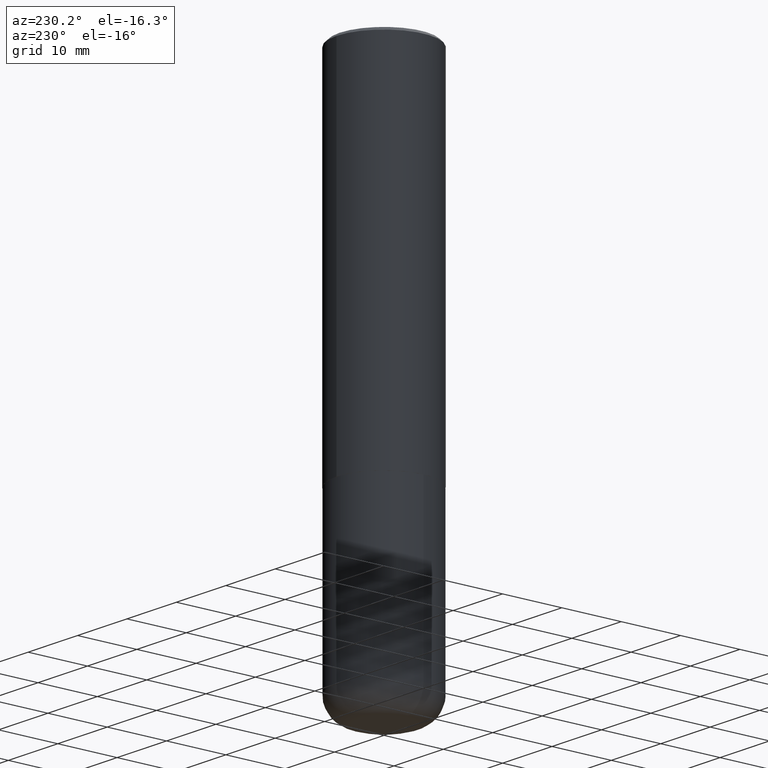
[diagram: clean part render]
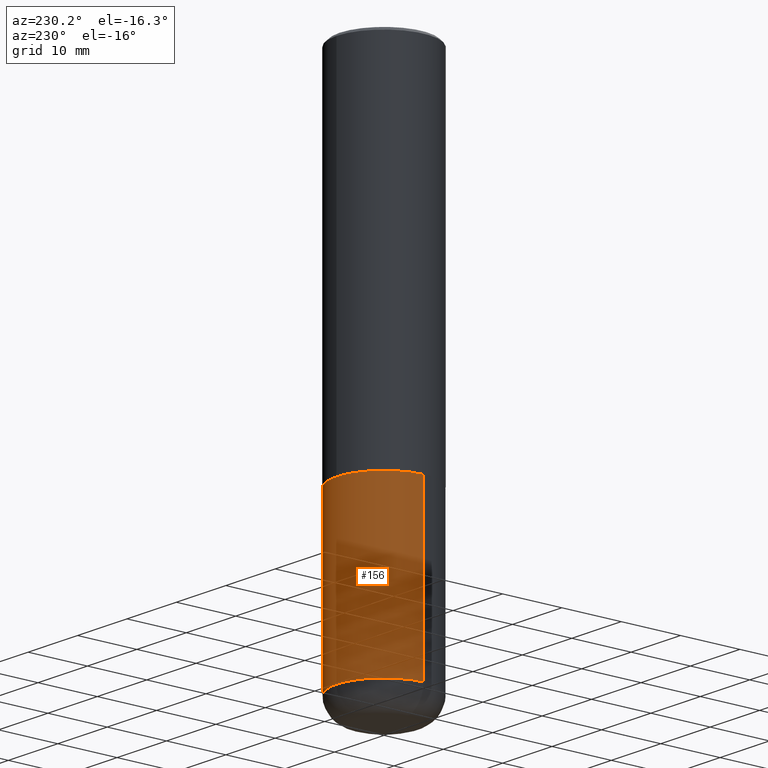
[diagram: same view with one face highlighted and labeled with its STEP entity id]
A machine part, auxiliary view. The second image highlights one B-rep face of the part: STEP entity #156.
In plain terms, the highlighted cylindrical surface (partial cylindrical patch) has radius 7.9997 mm, axis along (-0, 0, 1).
Its self-contained STEP definition (entity closure, byte-faithful):
#18 = VERTEX_POINT ( 'NONE', #328 ) ;
#39 = VERTEX_POINT ( 'NONE', #395 ) ;
#43 = DIRECTION ( 'NONE',  ( 1.000000000000000000, -6.982962677686268288E-15, 0.000000000000000000 ) ) ;
#47 = EDGE_CURVE ( 'NONE', #18, #39, #205, .T. ) ;
#60 = VECTOR ( 'NONE', #163, 39.37007874015748143 ) ;
#99 = EDGE_CURVE ( 'NONE', #356, #18, #297, .T. ) ;
#106 = LINE ( 'NONE', #144, #327 ) ;
#108 = CYLINDRICAL_SURFACE ( 'NONE', #294, 0.3149500000000000077 ) ;
#116 = CARTESIAN_POINT ( 'NONE',  ( 5.776686413970529753E-29, -8.247577218615278049E-15, -2.362199999999999633 ) ) ;
#118 = EDGE_LOOP ( 'NONE', ( #329, #183, #278, #318 ) ) ;
#125 = VERTEX_POINT ( 'NONE', #309 ) ;
#144 = CARTESIAN_POINT ( 'NONE',  ( -0.3149500000000000077, 2.237854346276435590E-15, -1.549218606675782676E-29 ) ) ;
#153 = EDGE_CURVE ( 'NONE', #356, #125, #214, .T. ) ;
#156 = ADVANCED_FACE ( 'NONE', ( #405 ), #108, .T. ) ;
#157 = AXIS2_PLACEMENT_3D ( 'NONE', #336, #269, #43 ) ;
#163 = DIRECTION ( 'NONE',  ( -2.445468806185136877E-29, 3.491481338843145188E-15, 1.000000000000000000 ) ) ;
#183 = ORIENTED_EDGE ( 'NONE', *, *, #204, .T. ) ;
#204 = EDGE_CURVE ( 'NONE', #125, #39, #106, .T. ) ;
#205 = CIRCLE ( 'NONE', #314, 0.3149500000000000077 ) ;
#208 = DIRECTION ( 'NONE',  ( 1.000000000000000000, -6.982962677686266711E-15, 0.000000000000000000 ) ) ;
#214 = CIRCLE ( 'NONE', #157, 0.3149500000000000632 ) ;
#250 = DIRECTION ( 'NONE',  ( -2.445468806185136597E-29, 3.491481338843145583E-15, 1.000000000000000000 ) ) ;
#261 = DIRECTION ( 'NONE',  ( -2.445468806185136597E-29, 3.491481338843145583E-15, 1.000000000000000000 ) ) ;
#269 = DIRECTION ( 'NONE',  ( -2.445468806185136597E-29, 3.491481338843145583E-15, 1.000000000000000000 ) ) ;
#278 = ORIENTED_EDGE ( 'NONE', *, *, #47, .F. ) ;
#284 = CARTESIAN_POINT ( 'NONE',  ( 0.3149500000000001743, -1.429552119375936694E-14, -3.464499999999999247 ) ) ;
#294 = AXIS2_PLACEMENT_3D ( 'NONE', #300, #261, #400 ) ;
#297 = LINE ( 'NONE', #398, #60 ) ;
#300 = CARTESIAN_POINT ( 'NONE',  ( 0.000000000000000000, 0.000000000000000000, 0.000000000000000000 ) ) ;
#309 = CARTESIAN_POINT ( 'NONE',  ( -0.3149500000000001743, -9.858382752145637926E-15, -3.464499999999999247 ) ) ;
#314 = AXIS2_PLACEMENT_3D ( 'NONE', #116, #250, #208 ) ;
#318 = ORIENTED_EDGE ( 'NONE', *, *, #99, .F. ) ;
#327 = VECTOR ( 'NONE', #345, 39.37007874015748143 ) ;
#328 = CARTESIAN_POINT ( 'NONE',  ( 0.3149500000000000077, -1.044686131395256792E-14, -2.362199999999999633 ) ) ;
#329 = ORIENTED_EDGE ( 'NONE', *, *, #153, .T. ) ;
#336 = CARTESIAN_POINT ( 'NONE',  ( 8.472326679028403758E-29, -1.209623709842207549E-14, -3.464499999999999247 ) ) ;
#345 = DIRECTION ( 'NONE',  ( -2.445468806185136877E-29, 3.491481338843145188E-15, 1.000000000000000000 ) ) ;
#356 = VERTEX_POINT ( 'NONE', #284 ) ;
#395 = CARTESIAN_POINT ( 'NONE',  ( -0.3149500000000000077, -7.934052812242240784E-15, -2.362199999999999633 ) ) ;
#398 = CARTESIAN_POINT ( 'NONE',  ( 0.3149500000000000077, -2.199284095337289871E-15, 1.535751875536930130E-29 ) ) ;
#400 = DIRECTION ( 'NONE',  ( 1.000000000000000000, -6.982962677686266711E-15, 4.876176775795936353E-29 ) ) ;
#405 = FACE_OUTER_BOUND ( 'NONE', #118, .T. ) ;